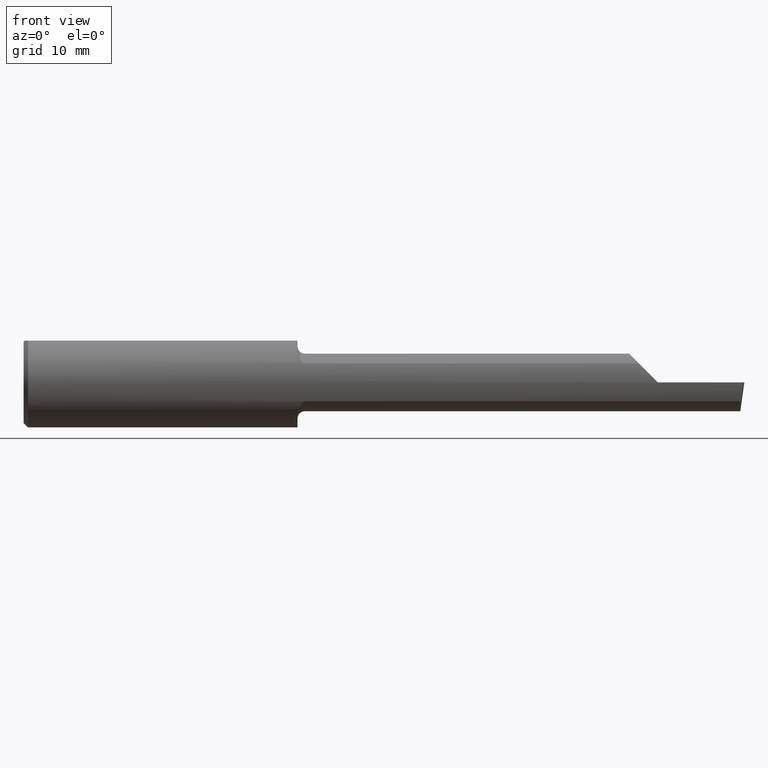
[diagram: clean part render]
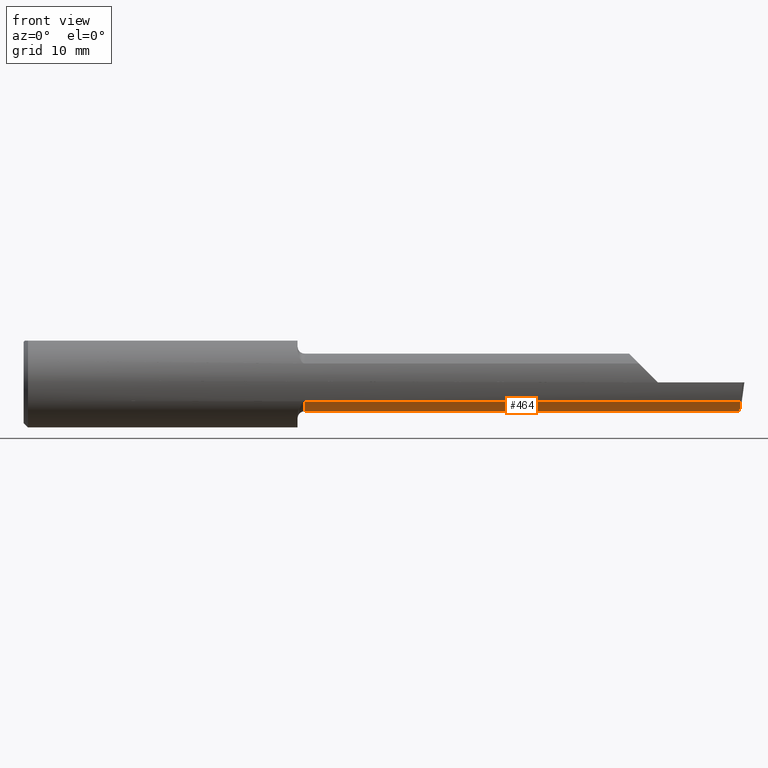
[diagram: same view with one face highlighted and labeled with its STEP entity id]
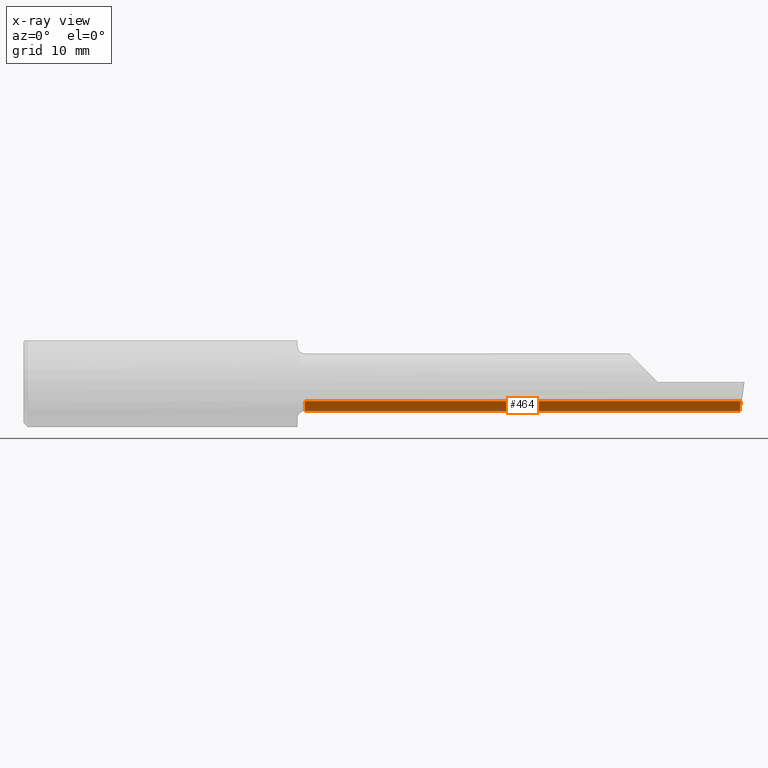
[diagram: x-ray of the same camera — body ghosted, the highlighted face saturated]
A machine part, front view. The second image highlights one B-rep face of the part: STEP entity #464.
The next image is the same camera in x-ray: the body ghosted, the highlighted face saturated — about 0% of this face is hidden behind the body in this view.
In plain terms, the highlighted cylindrical surface (edge-blend (fillet) strip) has radius 2.54 mm, axis along (-1, -0, -0).
Its self-contained STEP definition (entity closure, byte-faithful):
#7 = CIRCLE ( 'NONE', #1091, 2.540000000000000036 ) ;
#28 = VECTOR ( 'NONE', #114, 1000.000000000000000 ) ;
#44 = DIRECTION ( 'NONE',  ( -1.000000000000000000, -0.000000000000000000, -0.000000000000000000 ) ) ;
#93 = VERTEX_POINT ( 'NONE', #804 ) ;
#97 = EDGE_CURVE ( 'NONE', #816, #563, #7, .T. ) ;
#114 = DIRECTION ( 'NONE',  ( -1.000000000000000000, -0.000000000000000000, -0.000000000000000000 ) ) ;
#148 = LINE ( 'NONE', #534, #461 ) ;
#275 = CYLINDRICAL_SURFACE ( 'NONE', #541, 2.540000000000000036 ) ;
#280 = FACE_OUTER_BOUND ( 'NONE', #1225, .T. ) ;
#286 = CARTESIAN_POINT ( 'NONE',  ( 24.12999999999999901, -1.678939999999999211, -2.540000000000000036 ) ) ;
#374 = EDGE_CURVE ( 'NONE', #93, #474, #148, .T. ) ;
#415 = LINE ( 'NONE', #602, #28 ) ;
#453 = ORIENTED_EDGE ( 'NONE', *, *, #374, .F. ) ;
#461 = VECTOR ( 'NONE', #44, 1000.000000000000000 ) ;
#464 = ADVANCED_FACE ( 'NONE', ( #280 ), #275, .T. ) ;
#474 = VERTEX_POINT ( 'NONE', #950 ) ;
#534 = CARTESIAN_POINT ( 'NONE',  ( 63.50000000000002842, -1.678939999999999433, -2.540000000000000480 ) ) ;
#541 = AXIS2_PLACEMENT_3D ( 'NONE', #580, #748, #959 ) ;
#556 = EDGE_CURVE ( 'NONE', #642, #93, #743, .T. ) ;
#563 = VERTEX_POINT ( 'NONE', #1070 ) ;
#580 = CARTESIAN_POINT ( 'NONE',  ( 24.12999999999999901, -1.678939999999999433, 0.000000000000000000 ) ) ;
#589 = EDGE_CURVE ( 'NONE', #642, #816, #415, .T. ) ;
#593 = ORIENTED_EDGE ( 'NONE', *, *, #556, .F. ) ;
#602 = CARTESIAN_POINT ( 'NONE',  ( 40.38599999999999568, -3.599887049924355154, -1.661794942640913098 ) ) ;
#613 = CARTESIAN_POINT ( 'NONE',  ( 24.76500000000000057, -1.678939999999999433, 0.000000000000000000 ) ) ;
#642 = VERTEX_POINT ( 'NONE', #1174 ) ;
#670 = DIRECTION ( 'NONE',  ( -1.000000000000000000, -0.000000000000000000, -0.000000000000000000 ) ) ;
#730 = CARTESIAN_POINT ( 'NONE',  ( 24.76500000000000057, -3.599887049924355154, -1.661794942640913098 ) ) ;
#743 =( BOUNDED_CURVE ( )  B_SPLINE_CURVE ( 3, ( #1028, #943, #864, #807 ),
 .UNSPECIFIED., .F., .F. ) 
 B_SPLINE_CURVE_WITH_KNOTS ( ( 4, 4 ),
 ( 5.652899091607062054, 6.510504952072833085 ),
 .UNSPECIFIED. ) 
 CURVE ( )  GEOMETRIC_REPRESENTATION_ITEM ( )  RATIONAL_B_SPLINE_CURVE ( ( 1.000000000000000000, 0.9396427478180651160, 0.9396427478180651160, 1.000000000000000000 ) ) 
 REPRESENTATION_ITEM ( '' )  );
#748 = DIRECTION ( 'NONE',  ( -1.000000000000000000, -0.000000000000000000, -0.000000000000000000 ) ) ;
#779 = VECTOR ( 'NONE', #670, 1000.000000000000000 ) ;
#804 = CARTESIAN_POINT ( 'NONE',  ( 63.11822282597120903, -1.678939999999999433, -2.540000000000000480 ) ) ;
#805 = ORIENTED_EDGE ( 'NONE', *, *, #990, .F. ) ;
#807 = CARTESIAN_POINT ( 'NONE',  ( 63.11822282597120903, -1.678939999999999433, -2.540000000000000480 ) ) ;
#816 = VERTEX_POINT ( 'NONE', #730 ) ;
#864 = CARTESIAN_POINT ( 'NONE',  ( 63.09847522314641566, -2.428222866824018222, -2.540000000000000480 ) ) ;
#943 = CARTESIAN_POINT ( 'NONE',  ( 63.11601083078465990, -3.109668751225285632, -2.228461364918260301 ) ) ;
#950 = CARTESIAN_POINT ( 'NONE',  ( 56.64199999999999591, -1.678939999999999433, -2.540000000000000480 ) ) ;
#959 = DIRECTION ( 'NONE',  ( 0.000000000000000000, 0.000000000000000000, 1.000000000000000000 ) ) ;
#960 = ORIENTED_EDGE ( 'NONE', *, *, #589, .T. ) ;
#978 = DIRECTION ( 'NONE',  ( 0.000000000000000000, 0.000000000000000000, -1.000000000000000000 ) ) ;
#988 = ORIENTED_EDGE ( 'NONE', *, *, #97, .T. ) ;
#989 = DIRECTION ( 'NONE',  ( 1.000000000000000000, 0.000000000000000000, 0.000000000000000000 ) ) ;
#990 = EDGE_CURVE ( 'NONE', #474, #563, #1139, .T. ) ;
#1028 = CARTESIAN_POINT ( 'NONE',  ( 63.16765444560877540, -3.599887049924355598, -1.661794942640913542 ) ) ;
#1070 = CARTESIAN_POINT ( 'NONE',  ( 24.76500000000000057, -1.678939999999999211, -2.540000000000000036 ) ) ;
#1091 = AXIS2_PLACEMENT_3D ( 'NONE', #613, #989, #978 ) ;
#1139 = LINE ( 'NONE', #286, #779 ) ;
#1174 = CARTESIAN_POINT ( 'NONE',  ( 63.16765444560877540, -3.599887049924355598, -1.661794942640913542 ) ) ;
#1225 = EDGE_LOOP ( 'NONE', ( #805, #453, #593, #960, #988 ) ) ;